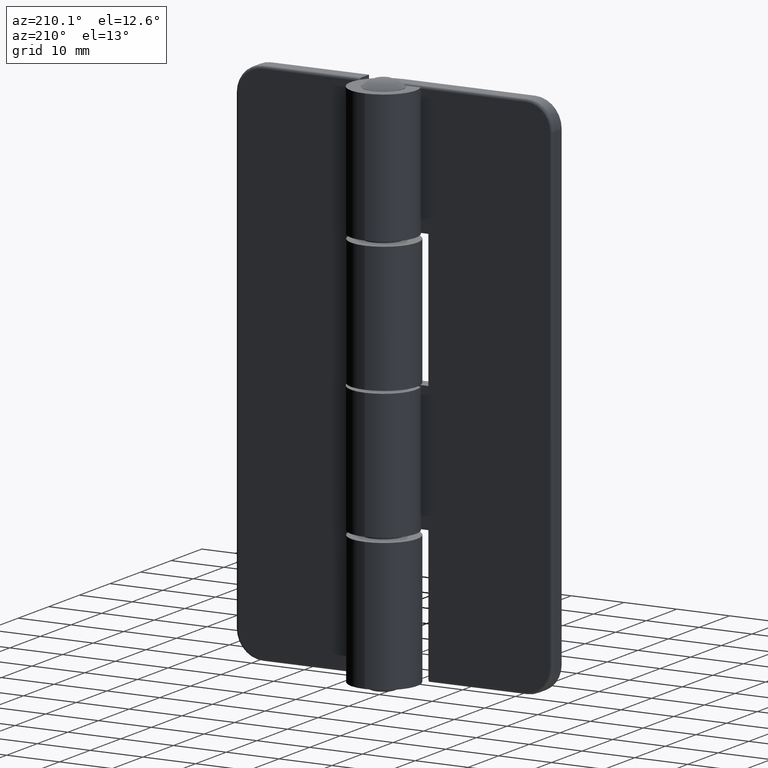
[diagram: clean part render]
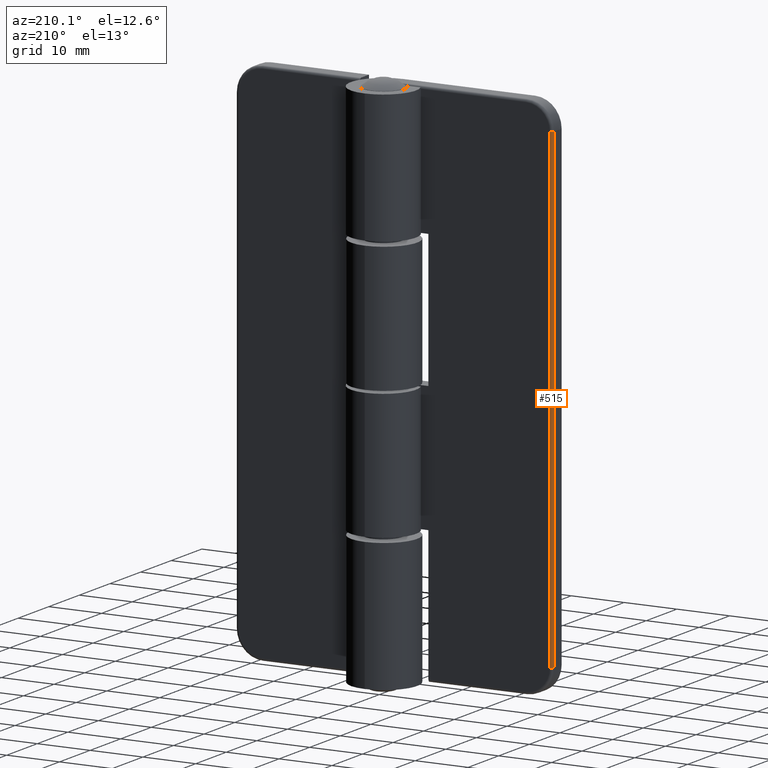
[diagram: same view with one face highlighted and labeled with its STEP entity id]
A machine part, auxiliary view. The second image highlights one B-rep face of the part: STEP entity #515.
In plain terms, the highlighted cylindrical surface (edge-blend (fillet) strip) has radius 0.5 mm, axis along (0, 0, -1).
Its self-contained STEP definition (entity closure, byte-faithful):
#53=LINE('',#826,#94);
#54=LINE('',#827,#95);
#94=VECTOR('',#642,90.);
#95=VECTOR('',#643,90.);
#134=CYLINDRICAL_SURFACE('',#557,0.5);
#148=FACE_OUTER_BOUND('',#180,.T.);
#180=EDGE_LOOP('',(#376,#377,#378,#379));
#217=CIRCLE('',#554,0.5);
#220=CIRCLE('',#558,0.5);
#250=VERTEX_POINT('',#817);
#251=VERTEX_POINT('',#818);
#252=VERTEX_POINT('',#823);
#253=VERTEX_POINT('',#824);
#299=EDGE_CURVE('',#250,#251,#217,.T.);
#302=EDGE_CURVE('',#252,#253,#220,.T.);
#303=EDGE_CURVE('',#253,#251,#53,.T.);
#304=EDGE_CURVE('',#250,#252,#54,.T.);
#376=ORIENTED_EDGE('',*,*,#302,.T.);
#377=ORIENTED_EDGE('',*,*,#303,.T.);
#378=ORIENTED_EDGE('',*,*,#299,.F.);
#379=ORIENTED_EDGE('',*,*,#304,.T.);
#515=ADVANCED_FACE('',(#148),#134,.T.);
#554=AXIS2_PLACEMENT_3D('',#819,#632,#633);
#557=AXIS2_PLACEMENT_3D('',#822,#638,#639);
#558=AXIS2_PLACEMENT_3D('',#825,#640,#641);
#632=DIRECTION('center_axis',(0.,0.,1.));
#633=DIRECTION('ref_axis',(0.,1.,0.));
#638=DIRECTION('center_axis',(0.,0.,-1.));
#639=DIRECTION('ref_axis',(-0.707106781186546,0.707106781186549,0.));
#640=DIRECTION('center_axis',(0.,0.,1.));
#641=DIRECTION('ref_axis',(0.,1.,0.));
#642=DIRECTION('',(0.,0.,1.));
#643=DIRECTION('',(0.,0.,-1.));
#817=CARTESIAN_POINT('',(-29.5,3.,-5.));
#818=CARTESIAN_POINT('',(-30.,2.5,-5.));
#819=CARTESIAN_POINT('Origin',(-29.5,2.5,-5.));
#822=CARTESIAN_POINT('Origin',(-29.5,2.5,0.));
#823=CARTESIAN_POINT('',(-29.5,3.,-95.));
#824=CARTESIAN_POINT('',(-30.,2.5,-95.));
#825=CARTESIAN_POINT('Origin',(-29.5,2.5,-95.));
#826=CARTESIAN_POINT('',(-30.,2.5,0.));
#827=CARTESIAN_POINT('',(-29.5,3.,0.));